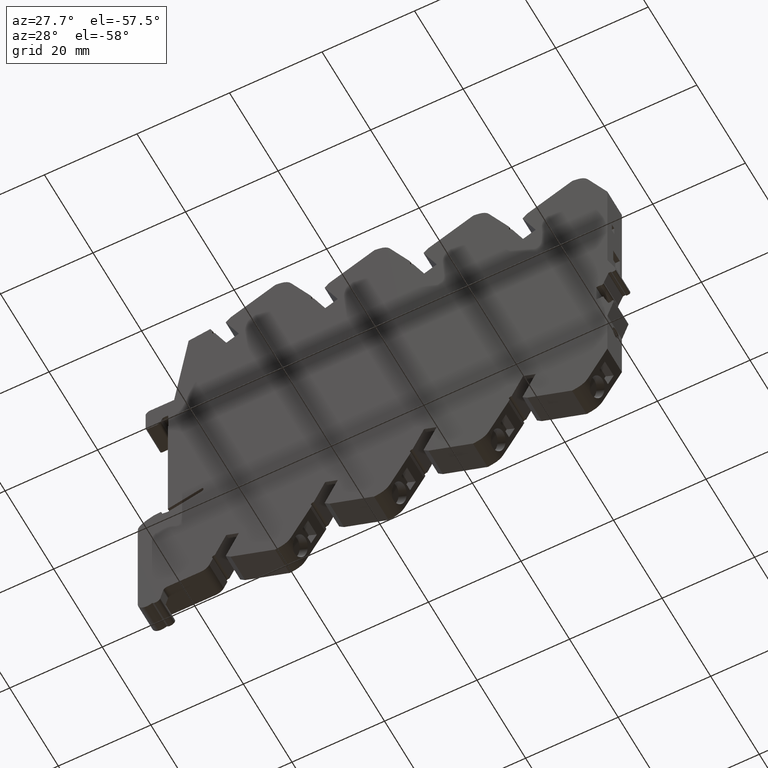
[diagram: clean part render]
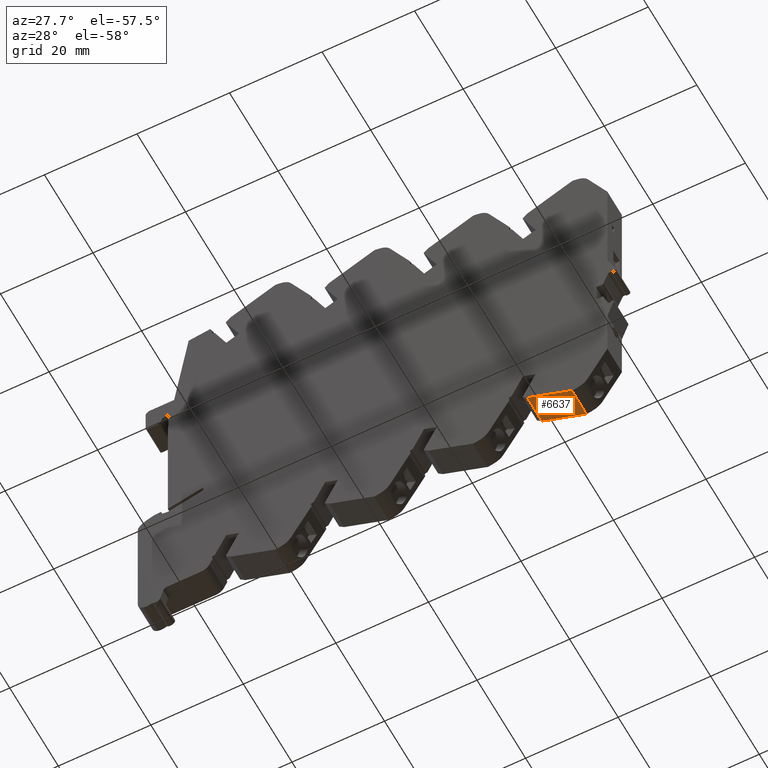
[diagram: same view with one face highlighted and labeled with its STEP entity id]
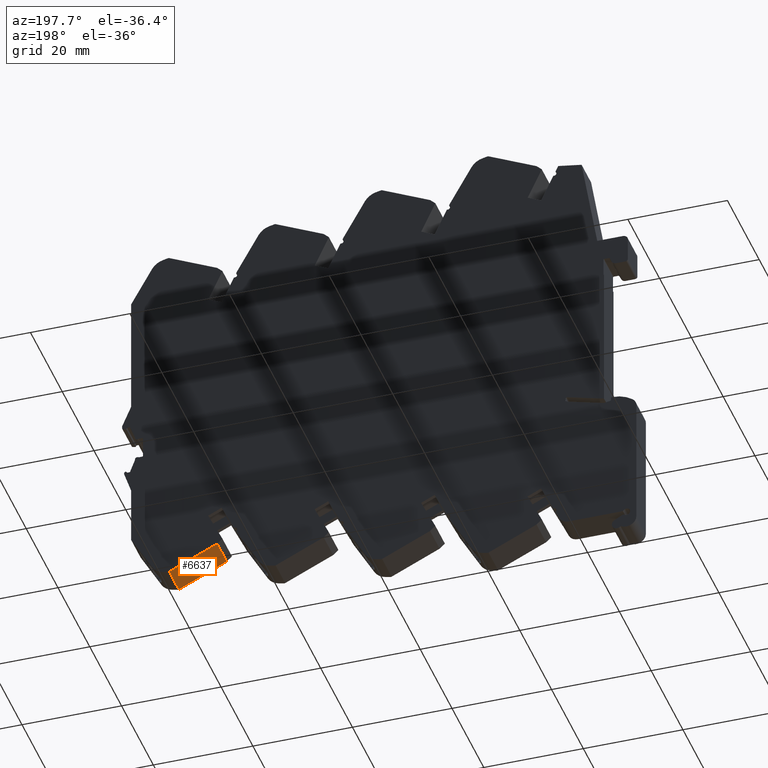
[diagram: same view with one face highlighted and labeled with its STEP entity id]
A machine part, auxiliary view. The second image highlights one B-rep face of the part: STEP entity #6637.
A second angle (auxiliary view) of the same face is appended — the face is thin or edge-on in the first view.
In plain terms, the highlighted planar face has unit normal (0.4226, 0, 0.9063).
Its self-contained STEP definition (entity closure, byte-faithful):
#106 = FACE_OUTER_BOUND ( 'NONE', #5311, .T. ) ;
#142 = CARTESIAN_POINT ( 'NONE',  ( 3.000000000000000000, -36.30747228031760443, 43.07241960114301804 ) ) ;
#459 = CARTESIAN_POINT ( 'NONE',  ( 3.000000000000000000, -31.82255900000000182, 33.45449300000000648 ) ) ;
#839 = DIRECTION ( 'NONE',  ( 0.000000000000000000, 0.9063077707721688414, 0.4226182966199899527 ) ) ;
#1011 = VERTEX_POINT ( 'NONE', #1029 ) ;
#1016 = VECTOR ( 'NONE', #8611, 1000.000000000000114 ) ;
#1029 = CARTESIAN_POINT ( 'NONE',  ( -3.000000000000000000, -36.30747228031760443, 43.07241960114301804 ) ) ;
#1521 = VERTEX_POINT ( 'NONE', #3393 ) ;
#1589 = AXIS2_PLACEMENT_3D ( 'NONE', #2828, #839, #2093 ) ;
#1830 = CARTESIAN_POINT ( 'NONE',  ( 3.000000000000000000, -36.30747228031760443, 43.07241960114301804 ) ) ;
#1850 = EDGE_CURVE ( 'NONE', #1521, #1011, #7979, .T. ) ;
#1999 = PLANE ( 'NONE',  #1589 ) ;
#2044 = CARTESIAN_POINT ( 'NONE',  ( 3.000000000000000000, -31.82255900000000182, 33.45449300000000648 ) ) ;
#2093 = DIRECTION ( 'NONE',  ( -1.000000000000000000, 0.000000000000000000, 0.000000000000000000 ) ) ;
#2317 = CARTESIAN_POINT ( 'NONE',  ( -3.000000000000000000, -31.82255900000000182, 33.45449300000000648 ) ) ;
#2626 = VECTOR ( 'NONE', #5991, 1000.000000000000000 ) ;
#2828 = CARTESIAN_POINT ( 'NONE',  ( 3.000000000000000000, -36.30747228031760443, 43.07241960114301804 ) ) ;
#2871 = LINE ( 'NONE', #142, #6352 ) ;
#3137 = ORIENTED_EDGE ( 'NONE', *, *, #8641, .F. ) ;
#3300 = VERTEX_POINT ( 'NONE', #2317 ) ;
#3393 = CARTESIAN_POINT ( 'NONE',  ( 3.000000000000000000, -36.30747228031760443, 43.07241960114301804 ) ) ;
#4021 = CARTESIAN_POINT ( 'NONE',  ( -3.000000000000000000, -36.30747228031760443, 43.07241960114301804 ) ) ;
#4360 = ORIENTED_EDGE ( 'NONE', *, *, #8537, .T. ) ;
#4715 = ORIENTED_EDGE ( 'NONE', *, *, #5331, .F. ) ;
#4784 = ORIENTED_EDGE ( 'NONE', *, *, #1850, .T. ) ;
#5311 = EDGE_LOOP ( 'NONE', ( #4360, #4715, #3137, #4784 ) ) ;
#5331 = EDGE_CURVE ( 'NONE', #8253, #3300, #8057, .T. ) ;
#5787 = DIRECTION ( 'NONE',  ( -1.000000000000000000, 0.000000000000000000, 0.000000000000000000 ) ) ;
#5991 = DIRECTION ( 'NONE',  ( -1.000000000000000000, 0.000000000000000000, 0.000000000000000000 ) ) ;
#6352 = VECTOR ( 'NONE', #7485, 1000.000000000000114 ) ;
#6597 = LINE ( 'NONE', #4021, #1016 ) ;
#6637 = ADVANCED_FACE ( 'NONE', ( #106 ), #1999, .F. ) ;
#7485 = DIRECTION ( 'NONE',  ( 0.000000000000000000, 0.4226182966199907853, -0.9063077707721683973 ) ) ;
#7501 = VECTOR ( 'NONE', #5787, 1000.000000000000000 ) ;
#7979 = LINE ( 'NONE', #1830, #7501 ) ;
#8057 = LINE ( 'NONE', #2044, #2626 ) ;
#8253 = VERTEX_POINT ( 'NONE', #459 ) ;
#8537 = EDGE_CURVE ( 'NONE', #1011, #3300, #6597, .T. ) ;
#8611 = DIRECTION ( 'NONE',  ( 0.000000000000000000, 0.4226182966199907853, -0.9063077707721683973 ) ) ;
#8641 = EDGE_CURVE ( 'NONE', #1521, #8253, #2871, .T. ) ;